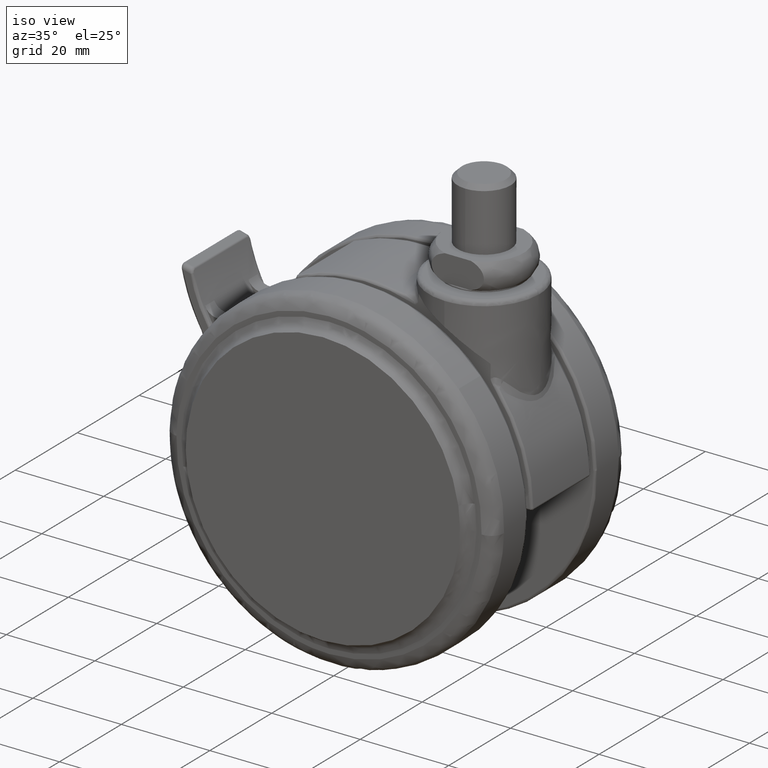
[diagram: clean part render]
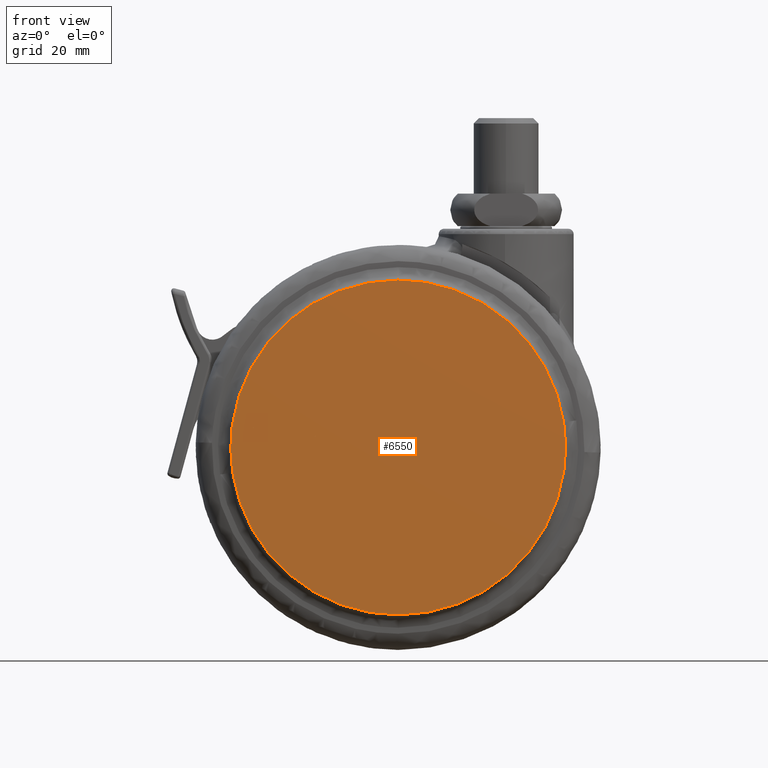
[diagram: tour spotlight — one face highlighted and labeled with its STEP entity id]
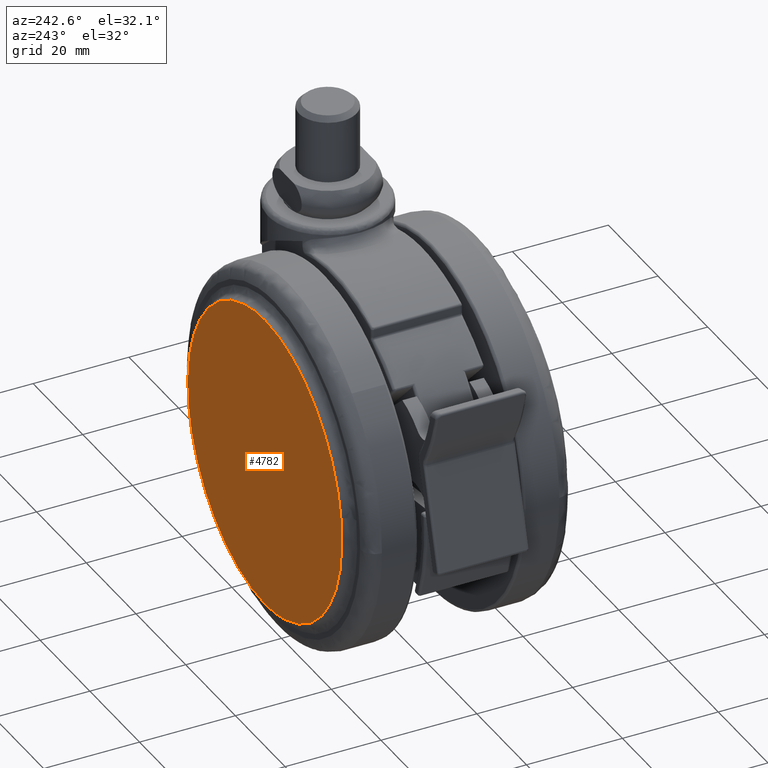
[diagram: tour spotlight — one face highlighted and labeled with its STEP entity id]
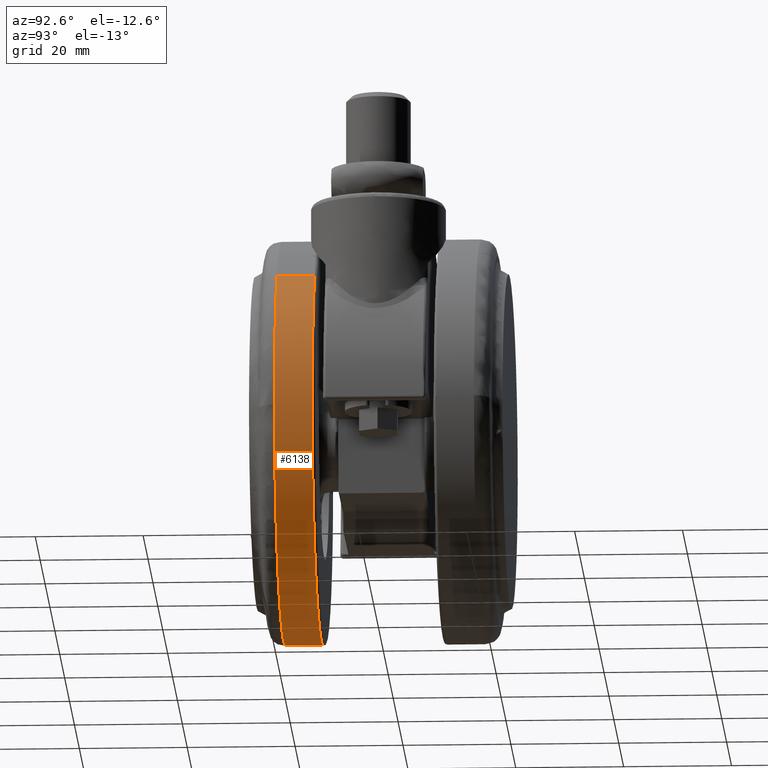
[diagram: tour spotlight — one face highlighted and labeled with its STEP entity id]
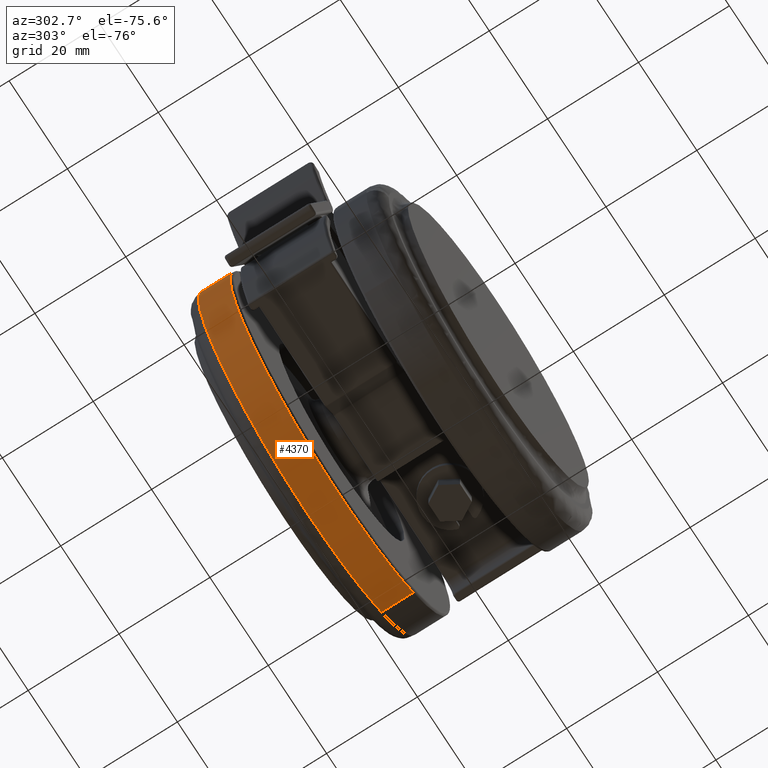
[diagram: tour spotlight — one face highlighted and labeled with its STEP entity id]
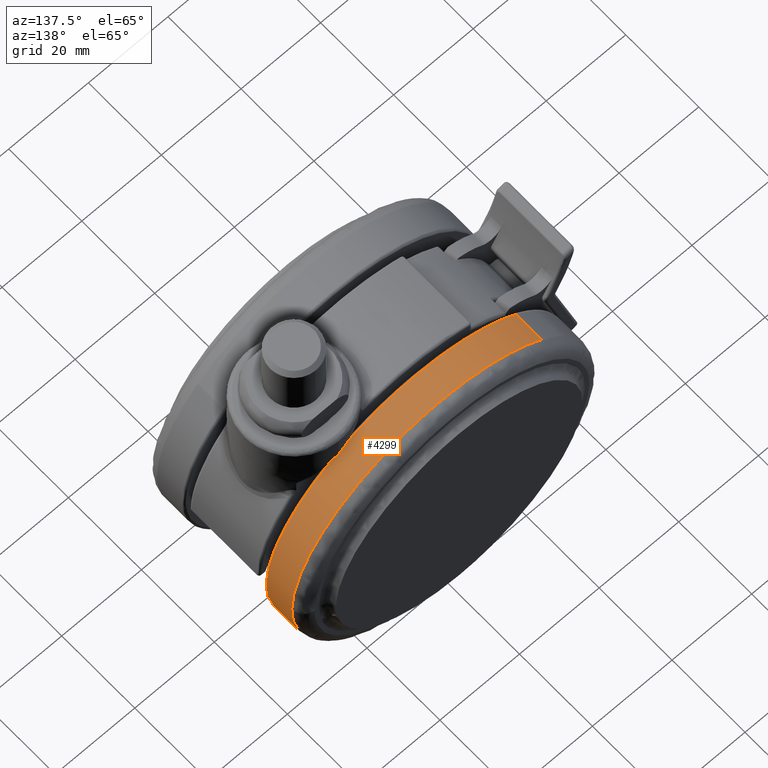
[diagram: tour spotlight — one face highlighted and labeled with its STEP entity id]
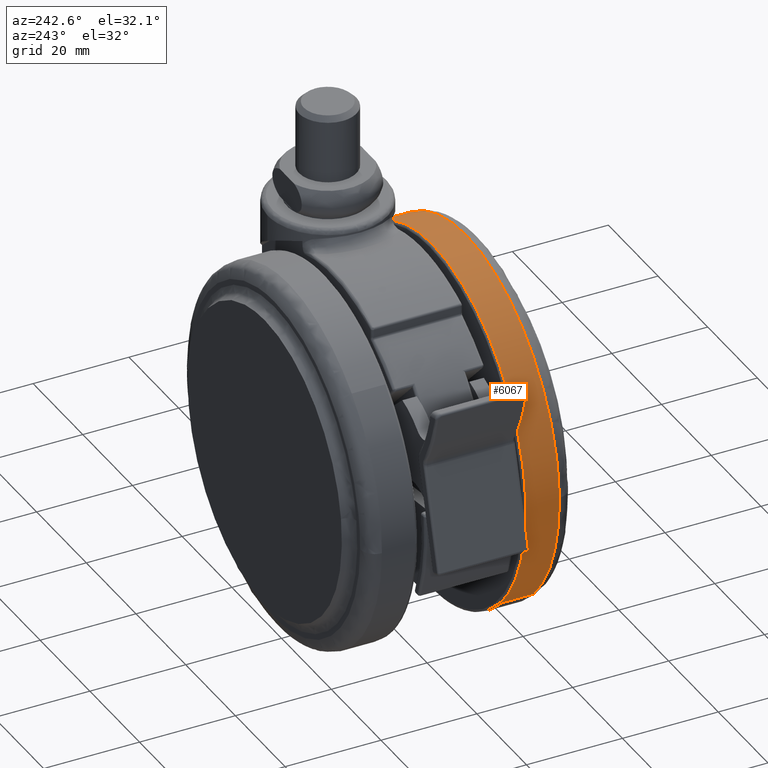
[diagram: tour spotlight — one face highlighted and labeled with its STEP entity id]
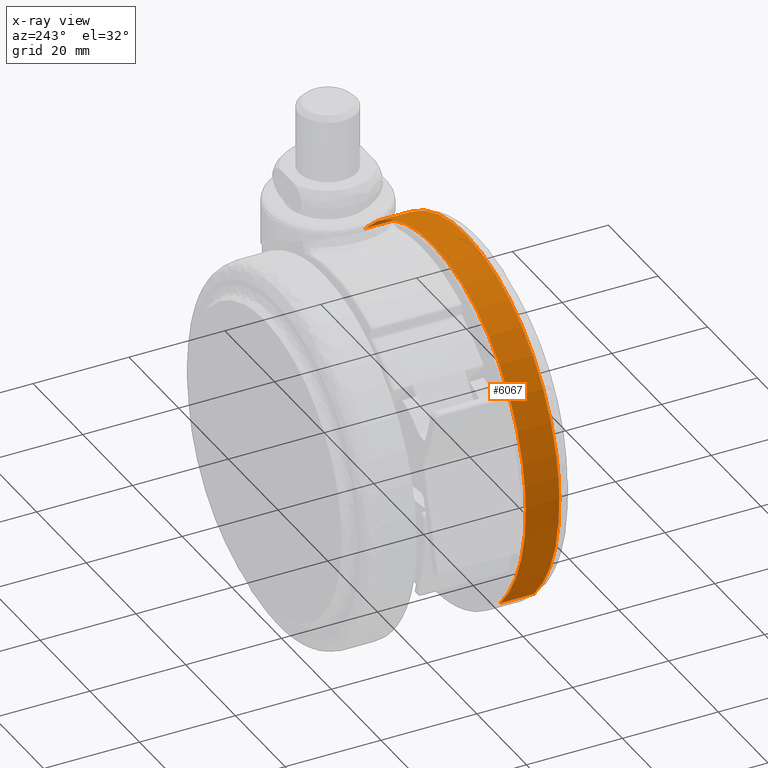
[diagram: x-ray of the same camera — body ghosted, this tour face saturated]
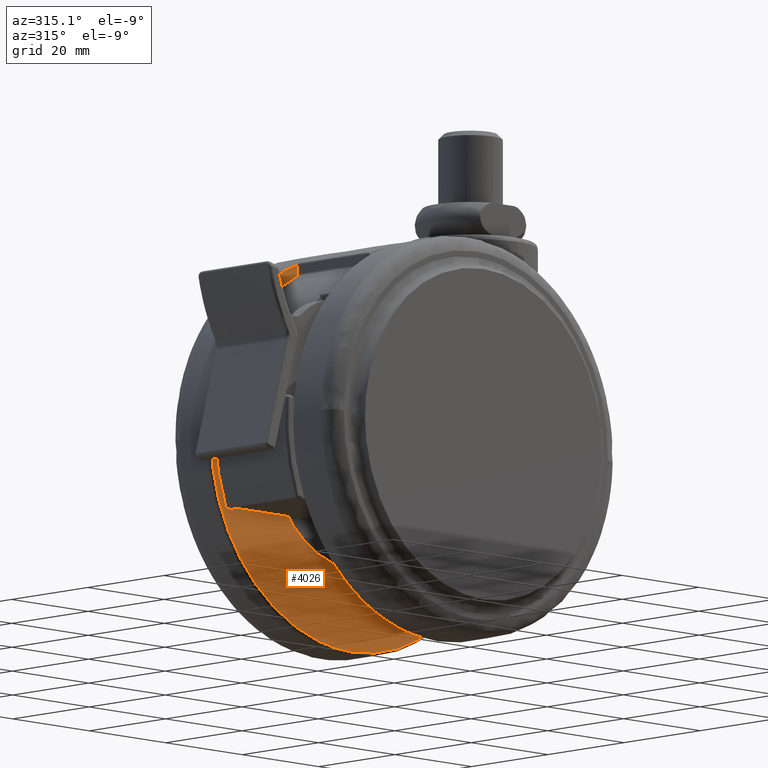
[diagram: tour spotlight — one face highlighted and labeled with its STEP entity id]
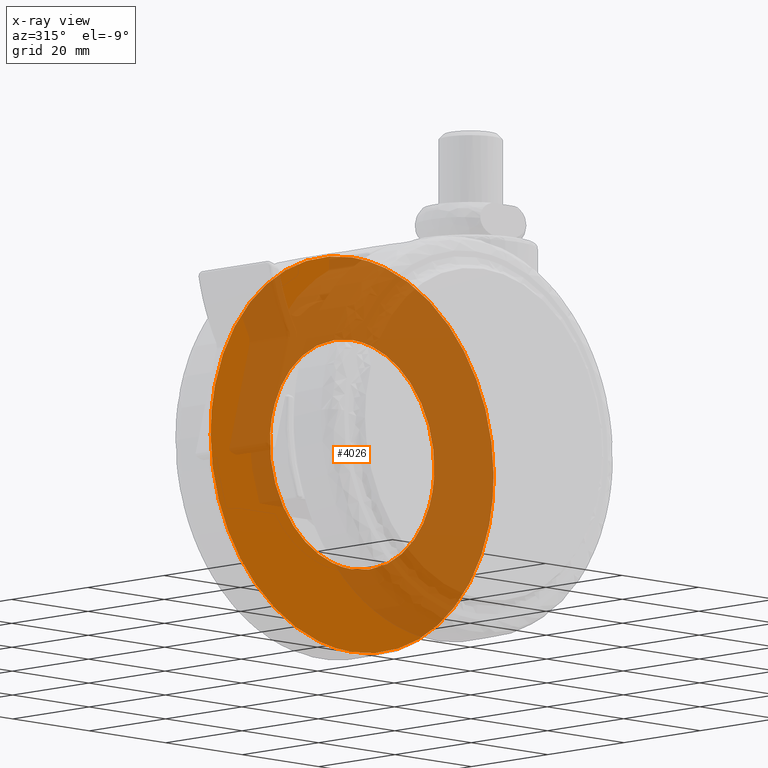
[diagram: x-ray of the same camera — body ghosted, this tour face saturated]
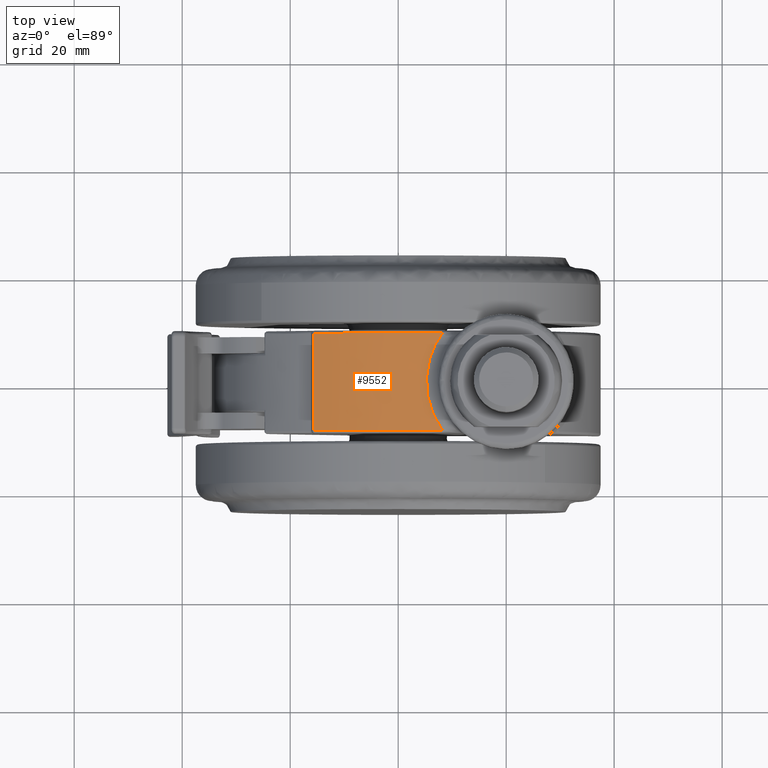
[diagram: tour spotlight — one face highlighted and labeled with its STEP entity id]
A machine part: a face-by-face anatomy tour. The part has 260 B-rep faces; the first image is the clean iso view, then the 8 largest visible faces are spotlighted one at a time (largest first), each with its STEP entity span.

Face 1 — front view, entity #6550. In plain terms, the highlighted face is a freeform B-spline surface patch.
Definition (entity closure, byte-faithful):
#6410=CARTESIAN_POINT('',(10.648204086947260,-23.499999999140972,-35.843006737229253));
#6411=VERTEX_POINT('',#6410);
#6425=CARTESIAN_POINT('',(-20.0,-23.500000000000021,-71.500000000000185));
#6426=VERTEX_POINT('',#6425);
#6427=CARTESIAN_POINT('',(-20.0,-23.500000000000021,-71.500000000000185));
#6428=CARTESIAN_POINT('',(11.000000000031953,-23.499999999630838,-71.499999999995254));
#6429=CARTESIAN_POINT('',(11.000000000069130,-23.499999999201311,-40.499999999989498));
#6430=CARTESIAN_POINT('',(11.000000000071932,-23.499999999168864,-38.158215786095255));
#6431=CARTESIAN_POINT('',(10.648204086947262,-23.499999999140975,-35.843006737229246));
#6439=(BOUNDED_CURVE()B_SPLINE_CURVE(2,(#6427,#6428,#6429,#6430,#6431),.UNSPECIFIED.,.F.,.U.)B_SPLINE_CURVE_WITH_KNOTS((3,2,3),(0.0,0.250000000000000,0.275897584623553),.UNSPECIFIED.)CURVE()GEOMETRIC_REPRESENTATION_ITEM()RATIONAL_B_SPLINE_CURVE((1.0,0.707106781186548,1.0,0.969659092320456,0.945604234434402))REPRESENTATION_ITEM(''));
#6440=EDGE_CURVE('',#6426,#6411,#6439,.T.);
#6442=CARTESIAN_POINT('',(-50.648204086947260,-23.499999999140972,-45.156993262770747));
#6443=VERTEX_POINT('',#6442);
#6444=CARTESIAN_POINT('',(-50.648204086947260,-23.499999999140968,-45.156993262770762));
#6445=CARTESIAN_POINT('',(-46.645385372037936,-23.499999999570488,-71.500000000005727));
#6446=CARTESIAN_POINT('',(-20.0,-23.500000000000021,-71.500000000000185));
#6454=(BOUNDED_CURVE()B_SPLINE_CURVE(2,(#6444,#6445,#6446),.UNSPECIFIED.,.F.,.U.)B_SPLINE_CURVE_WITH_KNOTS((3,3),(0.775897584623553,1.0),.UNSPECIFIED.)CURVE()GEOMETRIC_REPRESENTATION_ITEM()RATIONAL_B_SPLINE_CURVE((0.945604234434402,0.737447688866092,1.0))REPRESENTATION_ITEM(''));
#6455=EDGE_CURVE('',#6443,#6426,#6454,.T.);
#6504=CARTESIAN_POINT('',(-20.0,-23.500000000000000,-9.500000000000002));
#6505=VERTEX_POINT('',#6504);
#6506=CARTESIAN_POINT('',(-20.0,-23.500000000000000,-9.500000000000002));
#6507=CARTESIAN_POINT('',(-51.000000000031974,-23.499999999630823,-9.500000000004851));
#6508=CARTESIAN_POINT('',(-51.000000000069129,-23.499999999201300,-40.500000000010488));
#6509=CARTESIAN_POINT('',(-51.000000000071942,-23.499999999168857,-42.841784213904745));
#6510=CARTESIAN_POINT('',(-50.648204086947260,-23.499999999140968,-45.156993262770762));
#6518=(BOUNDED_CURVE()B_SPLINE_CURVE(2,(#6506,#6507,#6508,#6509,#6510),.UNSPECIFIED.,.F.,.U.)B_SPLINE_CURVE_WITH_KNOTS((3,2,3),(0.500000000000000,0.750000000000000,0.775897584623553),.UNSPECIFIED.)CURVE()GEOMETRIC_REPRESENTATION_ITEM()RATIONAL_B_SPLINE_CURVE((1.0,0.707106781186548,1.0,0.969659092320456,0.945604234434402))REPRESENTATION_ITEM(''));
#6519=EDGE_CURVE('',#6505,#6443,#6518,.T.);
#6521=CARTESIAN_POINT('',(10.648204086947262,-23.499999999140975,-35.843006737229246));
#6522=CARTESIAN_POINT('',(6.645385372037931,-23.499999999570491,-9.499999999994349));
#6523=CARTESIAN_POINT('',(-20.0,-23.500000000000000,-9.500000000000002));
#6531=(BOUNDED_CURVE()B_SPLINE_CURVE(2,(#6521,#6522,#6523),.UNSPECIFIED.,.F.,.U.)B_SPLINE_CURVE_WITH_KNOTS((3,3),(0.275897584623553,0.500000000000000),.UNSPECIFIED.)CURVE()GEOMETRIC_REPRESENTATION_ITEM()RATIONAL_B_SPLINE_CURVE((0.945604234434402,0.737447688866092,1.0))REPRESENTATION_ITEM(''));
#6532=EDGE_CURVE('',#6411,#6505,#6531,.T.);
#6539=CARTESIAN_POINT('',(-54.089121003145273,-23.500000000000000,-6.403100120168022));
#6540=CARTESIAN_POINT('',(-54.089121003145273,-23.500000000000000,-74.596901542801746));
#6541=CARTESIAN_POINT('',(14.089122665735459,-23.500000000000000,-6.403100120168022));
#6542=CARTESIAN_POINT('',(14.089122665735459,-23.500000000000000,-74.596901542801746));
#6543=B_SPLINE_SURFACE_WITH_KNOTS('',1,1,((#6539,#6541),(#6540,#6542)),.UNSPECIFIED.,.F.,.F.,.U.,(2,2),(2,2),(0.0,68.193801422633726),(0.0,68.178243668880725),.UNSPECIFIED.);
#6544=ORIENTED_EDGE('',*,*,#6440,.T.);
#6545=ORIENTED_EDGE('',*,*,#6532,.T.);
#6546=ORIENTED_EDGE('',*,*,#6519,.T.);
#6547=ORIENTED_EDGE('',*,*,#6455,.T.);
#6548=EDGE_LOOP('',(#6544,#6545,#6546,#6547));
#6549=FACE_OUTER_BOUND('',#6548,.T.);
#6550=ADVANCED_FACE('',(#6549),#6543,.T.);

Face 2 — auxiliary view, entity #4782. In plain terms, the highlighted face is a freeform B-spline surface patch.
Definition (entity closure, byte-faithful):
#4642=CARTESIAN_POINT('',(-50.648204086947374,23.499999999138350,-35.843006737228443));
#4643=VERTEX_POINT('',#4642);
#4657=CARTESIAN_POINT('',(-20.0,23.500000000000021,-71.500000000000185));
#4658=VERTEX_POINT('',#4657);
#4659=CARTESIAN_POINT('',(-50.648204086947381,23.499999999138357,-35.843006737228428));
#4660=CARTESIAN_POINT('',(-51.000000000072170,23.499999999166324,-38.158215786094836));
#4661=CARTESIAN_POINT('',(-51.000000000069363,23.499999999198870,-40.499999999989477));
#4662=CARTESIAN_POINT('',(-51.000000000032060,23.499999999629708,-71.499999999995239));
#4663=CARTESIAN_POINT('',(-20.0,23.500000000000021,-71.500000000000185));
#4671=(BOUNDED_CURVE()B_SPLINE_CURVE(2,(#4659,#4660,#4661,#4662,#4663),.UNSPECIFIED.,.F.,.U.)B_SPLINE_CURVE_WITH_KNOTS((3,2,3),(0.724102415376443,0.750000000000000,1.0),.UNSPECIFIED.)CURVE()GEOMETRIC_REPRESENTATION_ITEM()RATIONAL_B_SPLINE_CURVE((0.945604234434395,0.969659092320451,1.0,0.707106781186548,1.0))REPRESENTATION_ITEM(''));
#4672=EDGE_CURVE('',#4643,#4658,#4671,.T.);
#4674=CARTESIAN_POINT('',(10.648204086947370,23.499999999138360,-45.156993262771557));
#4675=VERTEX_POINT('',#4674);
#4676=CARTESIAN_POINT('',(-20.0,23.500000000000021,-71.500000000000185));
#4677=CARTESIAN_POINT('',(6.645385372037358,23.499999999569194,-71.500000000005755));
#4678=CARTESIAN_POINT('',(10.648204086947372,23.499999999138357,-45.156993262771564));
#4686=(BOUNDED_CURVE()B_SPLINE_CURVE(2,(#4676,#4677,#4678),.UNSPECIFIED.,.F.,.U.)B_SPLINE_CURVE_WITH_KNOTS((3,3),(0.0,0.224102415376443),.UNSPECIFIED.)CURVE()GEOMETRIC_REPRESENTATION_ITEM()RATIONAL_B_SPLINE_CURVE((1.0,0.737447688866097,0.945604234434395))REPRESENTATION_ITEM(''));
#4687=EDGE_CURVE('',#4658,#4675,#4686,.T.);
#4736=CARTESIAN_POINT('',(-20.0,23.500000000000000,-9.500000000000002));
#4737=VERTEX_POINT('',#4736);
#4738=CARTESIAN_POINT('',(10.648204086947372,23.499999999138357,-45.156993262771564));
#4739=CARTESIAN_POINT('',(11.000000000072161,23.499999999166334,-42.841784213905179));
#4740=CARTESIAN_POINT('',(11.000000000069340,23.499999999198870,-40.500000000010537));
#4741=CARTESIAN_POINT('',(11.000000000032053,23.499999999629690,-9.500000000004876));
#4742=CARTESIAN_POINT('',(-20.0,23.500000000000000,-9.500000000000002));
#4750=(BOUNDED_CURVE()B_SPLINE_CURVE(2,(#4738,#4739,#4740,#4741,#4742),.UNSPECIFIED.,.F.,.U.)B_SPLINE_CURVE_WITH_KNOTS((3,2,3),(0.224102415376443,0.250000000000000,0.500000000000000),.UNSPECIFIED.)CURVE()GEOMETRIC_REPRESENTATION_ITEM()RATIONAL_B_SPLINE_CURVE((0.945604234434395,0.969659092320451,1.0,0.707106781186548,1.0))REPRESENTATION_ITEM(''));
#4751=EDGE_CURVE('',#4675,#4737,#4750,.T.);
#4753=CARTESIAN_POINT('',(-20.0,23.500000000000000,-9.500000000000002));
#4754=CARTESIAN_POINT('',(-46.645385372037346,23.499999999569180,-9.499999999994335));
#4755=CARTESIAN_POINT('',(-50.648204086947381,23.499999999138357,-35.843006737228428));
#4763=(BOUNDED_CURVE()B_SPLINE_CURVE(2,(#4753,#4754,#4755),.UNSPECIFIED.,.F.,.U.)B_SPLINE_CURVE_WITH_KNOTS((3,3),(0.500000000000000,0.724102415376443),.UNSPECIFIED.)CURVE()GEOMETRIC_REPRESENTATION_ITEM()RATIONAL_B_SPLINE_CURVE((1.0,0.737447688866097,0.945604234434395))REPRESENTATION_ITEM(''));
#4764=EDGE_CURVE('',#4737,#4643,#4763,.T.);
#4771=CARTESIAN_POINT('',(14.089121109995141,23.500000000000000,-6.403100120168022));
#4772=CARTESIAN_POINT('',(14.089121109995141,23.500000000000000,-74.596901542801746));
#4773=CARTESIAN_POINT('',(-54.089121664191858,23.500000000000000,-6.403100120168022));
#4774=CARTESIAN_POINT('',(-54.089121664191858,23.500000000000000,-74.596901542801746));
#4775=B_SPLINE_SURFACE_WITH_KNOTS('',1,1,((#4771,#4773),(#4772,#4774)),.UNSPECIFIED.,.F.,.F.,.U.,(2,2),(2,2),(0.0,68.193801422633726),(0.0,68.178242774186998),.UNSPECIFIED.);
#4776=ORIENTED_EDGE('',*,*,#4672,.F.);
#4777=ORIENTED_EDGE('',*,*,#4764,.F.);
#4778=ORIENTED_EDGE('',*,*,#4751,.F.);
#4779=ORIENTED_EDGE('',*,*,#4687,.F.);
#4780=EDGE_LOOP('',(#4776,#4777,#4778,#4779));
#4781=FACE_OUTER_BOUND('',#4780,.T.);
#4782=ADVANCED_FACE('',(#4781),#4775,.T.);

Face 3 — auxiliary view, entity #6138. In plain terms, the highlighted face is a freeform B-spline surface patch.
Definition (entity closure, byte-faithful):
#5856=CARTESIAN_POINT('',(7.201539494220557,-11.499999998926210,-14.686704024004261));
#5857=VERTEX_POINT('',#5856);
#5871=CARTESIAN_POINT('',(17.497039157642948,-11.499999997910869,-40.971226495637552));
#5872=VERTEX_POINT('',#5871);
#5873=CARTESIAN_POINT('',(17.497039157642945,-11.499999997910868,-40.971226495637552));
#5874=CARTESIAN_POINT('',(17.499999999999993,-11.499999997917355,-40.735622549701780));
#5875=CARTESIAN_POINT('',(17.499999999999989,-11.499999997923910,-40.500000000000000));
#5876=CARTESIAN_POINT('',(17.499999999999993,-11.499999998340654,-25.539017515397671));
#5877=CARTESIAN_POINT('',(7.201539494220572,-11.499999998926230,-14.686704024004259));
#5885=(BOUNDED_CURVE()B_SPLINE_CURVE(2,(#5873,#5874,#5875,#5876,#5877),.UNSPECIFIED.,.F.,.U.)B_SPLINE_CURVE_WITH_KNOTS((3,2,3),(0.247784295921673,0.250000000000000,0.371049523260813),.UNSPECIFIED.)CURVE()GEOMETRIC_REPRESENTATION_ITEM()RATIONAL_B_SPLINE_CURVE((0.994854295643885,0.997404141202243,1.0,0.858181661985227,0.853699661621086))REPRESENTATION_ITEM(''));
#5886=EDGE_CURVE('',#5872,#5857,#5885,.T.);
#5935=CARTESIAN_POINT('',(-20.0,-11.500000000000000,-78.0));
#5936=VERTEX_POINT('',#5935);
#5937=CARTESIAN_POINT('',(-20.0,-11.500000000000000,-78.0));
#5938=CARTESIAN_POINT('',(17.031697371512600,-11.499999998955436,-78.000000000000014));
#5939=CARTESIAN_POINT('',(17.497039157642945,-11.499999997910868,-40.971226495637552));
#5947=(BOUNDED_CURVE()B_SPLINE_CURVE(2,(#5937,#5938,#5939),.UNSPECIFIED.,.F.,.U.)B_SPLINE_CURVE_WITH_KNOTS((3,3),(0.0,0.247784295921673),.UNSPECIFIED.)CURVE()GEOMETRIC_REPRESENTATION_ITEM()RATIONAL_B_SPLINE_CURVE((1.0,0.709702639984305,0.994854295643885))REPRESENTATION_ITEM(''));
#5948=EDGE_CURVE('',#5936,#5872,#5947,.T.);
#5950=CARTESIAN_POINT('',(-47.201539494220562,-11.499999998926210,-66.313295975995743));
#5951=VERTEX_POINT('',#5950);
#5952=CARTESIAN_POINT('',(-47.201539494220576,-11.499999998926230,-66.313295975995757));
#5953=CARTESIAN_POINT('',(-36.111271973899612,-11.499999999556826,-78.0));
#5954=CARTESIAN_POINT('',(-20.0,-11.500000000000000,-78.0));
#5962=(BOUNDED_CURVE()B_SPLINE_CURVE(2,(#5952,#5953,#5954),.UNSPECIFIED.,.F.,.U.)B_SPLINE_CURVE_WITH_KNOTS((3,3),(0.871049523260813,1.0),.UNSPECIFIED.)CURVE()GEOMETRIC_REPRESENTATION_ITEM()RATIONAL_B_SPLINE_CURVE((0.853699661621086,0.848925119201321,1.0))REPRESENTATION_ITEM(''));
#5963=EDGE_CURVE('',#5951,#5936,#5962,.T.);
#6006=CARTESIAN_POINT('',(-47.201539487217197,-18.500000000235769,-66.313295983375752));
#6007=VERTEX_POINT('',#6006);
#6008=CARTESIAN_POINT('',(-47.201539494220562,-11.499999998926210,-66.313295975995743));
#6009=CARTESIAN_POINT('',(-47.201539487217197,-18.500000000235769,-66.313295983375752));
#6010=QUASI_UNIFORM_CURVE('',1,(#6008,#6009),.UNSPECIFIED.,.F.,.U.);
#6011=EDGE_CURVE('',#5951,#6007,#6010,.T.);
#6045=CARTESIAN_POINT('',(7.201539487217199,-18.500000000235769,-14.686704016624271));
#6046=VERTEX_POINT('',#6045);
#6060=CARTESIAN_POINT('',(7.201539494220557,-11.499999998926210,-14.686704024004261));
#6061=CARTESIAN_POINT('',(7.201539487217199,-18.500000000235769,-14.686704016624271));
#6062=QUASI_UNIFORM_CURVE('',1,(#6060,#6061),.UNSPECIFIED.,.F.,.U.);
#6063=EDGE_CURVE('',#5857,#6046,#6062,.T.);
#6068=CARTESIAN_POINT('',(-47.201538912960771,-11.324999997847071,-66.313296588515769));
#6069=CARTESIAN_POINT('',(-21.388242324445006,-11.324999997847073,-93.514835501476540));
#6070=CARTESIAN_POINT('',(5.813296588515765,-11.324999997847071,-67.701538912960771));
#6071=CARTESIAN_POINT('',(33.014835501476547,-11.324999997847073,-41.888242324445017));
#6072=CARTESIAN_POINT('',(7.201538912960775,-11.324999997847071,-14.686703411484240));
#6073=CARTESIAN_POINT('',(-47.201538912960771,-18.679375000528129,-66.313296588515769));
#6074=CARTESIAN_POINT('',(-21.388242324445006,-18.679375000528129,-93.514835501476540));
#6075=CARTESIAN_POINT('',(5.813296588515765,-18.679375000528129,-67.701538912960771));
#6076=CARTESIAN_POINT('',(33.014835501476547,-18.679375000528129,-41.888242324445017));
#6077=CARTESIAN_POINT('',(7.201538912960775,-18.679375000528129,-14.686703411484240));
#6085=(BOUNDED_SURFACE()B_SPLINE_SURFACE(2,1,((#6068,#6073),(#6069,#6074),(#6070,#6075),(#6071,#6076),(#6072,#6077)),.UNSPECIFIED.,.F.,.F.,.U.)B_SPLINE_SURFACE_WITH_KNOTS((3,2,3),(2,2),(0.0,62.132034355964230,124.264068711928500),(0.0,7.354375002681055),.UNSPECIFIED.)GEOMETRIC_REPRESENTATION_ITEM()RATIONAL_B_SPLINE_SURFACE(((1.0,1.0),(0.707106781186548,0.707106781186548),(1.0,1.0),(0.707106781186548,0.707106781186548),(1.0,1.0)))REPRESENTATION_ITEM('')SURFACE());
#6086=ORIENTED_EDGE('',*,*,#5886,.T.);
#6087=ORIENTED_EDGE('',*,*,#6063,.T.);
#6088=CARTESIAN_POINT('',(17.488157098123072,-18.500000000462730,-41.442378579151907));
#6089=VERTEX_POINT('',#6088);
#6090=CARTESIAN_POINT('',(17.488157098123075,-18.500000000462730,-41.442378579151914));
#6091=CARTESIAN_POINT('',(17.499999999999993,-18.500000000459902,-40.971263704640130));
#6092=CARTESIAN_POINT('',(17.500000000000000,-18.500000000456989,-40.500000000000007));
#6093=CARTESIAN_POINT('',(17.499999999999993,-18.500000000364686,-25.539017509500944));
#6094=CARTESIAN_POINT('',(7.201539487217209,-18.500000000235762,-14.686704016624251));
#6102=(BOUNDED_CURVE()B_SPLINE_CURVE(2,(#6090,#6091,#6092,#6093,#6094),.UNSPECIFIED.,.F.,.U.)B_SPLINE_CURVE_WITH_KNOTS((3,2,3),(0.245579891769683,0.250000000000000,0.371049523301757),.UNSPECIFIED.)CURVE()GEOMETRIC_REPRESENTATION_ITEM()RATIONAL_B_SPLINE_CURVE((0.989826157681294,0.994821521091674,1.0,0.858181661937258,0.853699661618054))REPRESENTATION_ITEM(''));
#6103=EDGE_CURVE('',#6089,#6046,#6102,.T.);
#6104=ORIENTED_EDGE('',*,*,#6103,.F.);
#6105=CARTESIAN_POINT('',(-20.0,-18.500000000000000,-78.000000000000014));
#6106=VERTEX_POINT('',#6105);
#6107=CARTESIAN_POINT('',(-20.0,-18.500000000000000,-78.000000000000014));
#6108=CARTESIAN_POINT('',(16.569170356748231,-18.500000000231370,-78.000000000000028));
#6109=CARTESIAN_POINT('',(17.488157098123075,-18.500000000462730,-41.442378579151914));
#6117=(BOUNDED_CURVE()B_SPLINE_CURVE(2,(#6107,#6108,#6109),.UNSPECIFIED.,.F.,.U.)B_SPLINE_CURVE_WITH_KNOTS((3,3),(0.0,0.245579891769683),.UNSPECIFIED.)CURVE()GEOMETRIC_REPRESENTATION_ITEM()RATIONAL_B_SPLINE_CURVE((1.0,0.712285260094873,0.989826157681294))REPRESENTATION_ITEM(''));
#6118=EDGE_CURVE('',#6106,#6089,#6117,.T.);
#6119=ORIENTED_EDGE('',*,*,#6118,.F.);
#6120=CARTESIAN_POINT('',(-47.201539487217218,-18.500000000235772,-66.313295983375752));
#6121=CARTESIAN_POINT('',(-36.111271967873606,-18.500000000096939,-78.0));
#6122=CARTESIAN_POINT('',(-20.0,-18.500000000000000,-78.000000000000014));
#6130=(BOUNDED_CURVE()B_SPLINE_CURVE(2,(#6120,#6121,#6122),.UNSPECIFIED.,.F.,.U.)B_SPLINE_CURVE_WITH_KNOTS((3,3),(0.871049523301757,1.0),.UNSPECIFIED.)CURVE()GEOMETRIC_REPRESENTATION_ITEM()RATIONAL_B_SPLINE_CURVE((0.853699661618054,0.848925119249290,1.0))REPRESENTATION_ITEM(''));
#6131=EDGE_CURVE('',#6007,#6106,#6130,.T.);
#6132=ORIENTED_EDGE('',*,*,#6131,.F.);
#6133=ORIENTED_EDGE('',*,*,#6011,.F.);
#6134=ORIENTED_EDGE('',*,*,#5963,.T.);
#6135=ORIENTED_EDGE('',*,*,#5948,.T.);
#6136=EDGE_LOOP('',(#6086,#6087,#6104,#6119,#6132,#6133,#6134,#6135));
#6137=FACE_OUTER_BOUND('',#6136,.T.);
#6138=ADVANCED_FACE('',(#6137),#6085,.T.);

Face 4 — auxiliary view, entity #4370. In plain terms, the highlighted face is a freeform B-spline surface patch.
Definition (entity closure, byte-faithful):
#4088=CARTESIAN_POINT('',(-45.334630958533047,11.499999999030729,-12.852098195433880));
#4089=VERTEX_POINT('',#4088);
#4103=CARTESIAN_POINT('',(-57.497039157642988,11.499999997915200,-40.971226495634191));
#4104=VERTEX_POINT('',#4103);
#4105=CARTESIAN_POINT('',(-45.334630958533111,11.499999999030695,-12.852098195433808));
#4106=CARTESIAN_POINT('',(-57.499999999999993,11.499999998386881,-23.999603612608912));
#4107=CARTESIAN_POINT('',(-57.499999999999993,11.499999997928210,-40.500000000000007));
#4108=CARTESIAN_POINT('',(-57.499999999999986,11.499999997921664,-40.735622549700111));
#4109=CARTESIAN_POINT('',(-57.497039157642988,11.499999997915202,-40.971226495634191));
#4117=(BOUNDED_CURVE()B_SPLINE_CURVE(2,(#4105,#4106,#4107,#4108,#4109),.UNSPECIFIED.,.F.,.U.)B_SPLINE_CURVE_WITH_KNOTS((3,2,3),(0.618415199108181,0.750000000000000,0.752215704078312),.UNSPECIFIED.)CURVE()GEOMETRIC_REPRESENTATION_ITEM()RATIONAL_B_SPLINE_CURVE((0.853959782069310,0.845838816479471,1.0,0.997404141202261,0.994854295643921))REPRESENTATION_ITEM(''));
#4118=EDGE_CURVE('',#4089,#4104,#4117,.T.);
#4167=CARTESIAN_POINT('',(-20.0,11.500000000000000,-78.0));
#4168=VERTEX_POINT('',#4167);
#4169=CARTESIAN_POINT('',(-57.497039157642988,11.499999997915202,-40.971226495634191));
#4170=CARTESIAN_POINT('',(-57.031697371515932,11.499999998957598,-78.0));
#4171=CARTESIAN_POINT('',(-20.0,11.500000000000000,-78.0));
#4179=(BOUNDED_CURVE()B_SPLINE_CURVE(2,(#4169,#4170,#4171),.UNSPECIFIED.,.F.,.U.)B_SPLINE_CURVE_WITH_KNOTS((3,3),(0.752215704078312,1.0),.UNSPECIFIED.)CURVE()GEOMETRIC_REPRESENTATION_ITEM()RATIONAL_B_SPLINE_CURVE((0.994854295643921,0.709702639984287,1.0))REPRESENTATION_ITEM(''));
#4180=EDGE_CURVE('',#4104,#4168,#4179,.T.);
#4182=CARTESIAN_POINT('',(5.334630958533095,11.499999999030729,-68.147901804566118));
#4183=VERTEX_POINT('',#4182);
#4184=CARTESIAN_POINT('',(-20.0,11.500000000000000,-78.0));
#4185=CARTESIAN_POINT('',(-5.417048981945808,11.499999999599694,-78.0));
#4186=CARTESIAN_POINT('',(5.334630958533142,11.499999999030694,-68.147901804566160));
#4194=(BOUNDED_CURVE()B_SPLINE_CURVE(2,(#4184,#4185,#4186),.UNSPECIFIED.,.F.,.U.)B_SPLINE_CURVE_WITH_KNOTS((3,3),(0.0,0.118415199108181),.UNSPECIFIED.)CURVE()GEOMETRIC_REPRESENTATION_ITEM()RATIONAL_B_SPLINE_CURVE((1.0,0.861267964707076,0.853959782069310))REPRESENTATION_ITEM(''));
#4195=EDGE_CURVE('',#4168,#4183,#4194,.T.);
#4238=CARTESIAN_POINT('',(5.334630980545483,18.500000000211710,-68.147901784395486));
#4239=VERTEX_POINT('',#4238);
#4240=CARTESIAN_POINT('',(5.334630958533095,11.499999999030729,-68.147901804566118));
#4241=CARTESIAN_POINT('',(5.334630980545483,18.500000000211710,-68.147901784395486));
#4242=QUASI_UNIFORM_CURVE('',1,(#4240,#4241),.UNSPECIFIED.,.F.,.U.);
#4243=EDGE_CURVE('',#4183,#4239,#4242,.T.);
#4277=CARTESIAN_POINT('',(-45.334630980545427,18.500000000211710,-12.852098215604499));
#4278=VERTEX_POINT('',#4277);
#4292=CARTESIAN_POINT('',(-45.334630958533047,11.499999999030729,-12.852098195433880));
#4293=CARTESIAN_POINT('',(-45.334630980545427,18.500000000211710,-12.852098215604499));
#4294=QUASI_UNIFORM_CURVE('',1,(#4292,#4293),.UNSPECIFIED.,.F.,.U.);
#4295=EDGE_CURVE('',#4089,#4278,#4294,.T.);
#4300=CARTESIAN_POINT('',(5.334632785587271,11.324999997851590,-68.147900130379639));
#4301=CARTESIAN_POINT('',(-22.313267344792362,11.324999997851638,-93.482532915966885));
#4302=CARTESIAN_POINT('',(-47.647900130379618,11.324999997851680,-65.834632785587246));
#4303=CARTESIAN_POINT('',(-72.982532915966871,11.324999997851714,-38.186732655207628));
#4304=CARTESIAN_POINT('',(-45.334632785587232,11.324999997851670,-12.852099869620361));
#4305=CARTESIAN_POINT('',(5.334632785587282,18.679375000520459,-68.147900130379639));
#4306=CARTESIAN_POINT('',(-22.313267344792362,18.679375000520491,-93.482532915966885));
#4307=CARTESIAN_POINT('',(-47.647900130379611,18.679375000520540,-65.834632785587246));
#4308=CARTESIAN_POINT('',(-72.982532915966871,18.679375000520576,-38.186732655207628));
#4309=CARTESIAN_POINT('',(-45.334632785587232,18.679375000520530,-12.852099869620361));
#4317=(BOUNDED_SURFACE()B_SPLINE_SURFACE(2,1,((#4300,#4305),(#4301,#4306),(#4302,#4307),(#4303,#4308),(#4304,#4309)),.UNSPECIFIED.,.F.,.F.,.U.)B_SPLINE_SURFACE_WITH_KNOTS((3,2,3),(2,2),(0.0,62.132034355964237,124.264068711928500),(0.0,7.354375002668862),.UNSPECIFIED.)GEOMETRIC_REPRESENTATION_ITEM()RATIONAL_B_SPLINE_SURFACE(((1.0,1.0),(0.707106781186548,0.707106781186548),(1.0,1.0),(0.707106781186548,0.707106781186548),(1.0,1.0)))REPRESENTATION_ITEM('')SURFACE());
#4318=ORIENTED_EDGE('',*,*,#4118,.F.);
#4319=ORIENTED_EDGE('',*,*,#4295,.T.);
#4320=CARTESIAN_POINT('',(-57.497039157642988,18.500000000455351,-40.971226495634191));
#4321=VERTEX_POINT('',#4320);
#4322=CARTESIAN_POINT('',(-45.334630980545512,18.500000000211713,-12.852098215604435));
#4323=CARTESIAN_POINT('',(-57.499999999999986,18.500000000352326,-23.999603630427302));
#4324=CARTESIAN_POINT('',(-57.499999999999993,18.500000000452498,-40.500000000000007));
#4325=CARTESIAN_POINT('',(-57.499999999999986,18.500000000453930,-40.735622549700111));
#4326=CARTESIAN_POINT('',(-57.497039157642988,18.500000000455344,-40.971226495634191));
#4334=(BOUNDED_CURVE()B_SPLINE_CURVE(2,(#4322,#4323,#4324,#4325,#4326),.UNSPECIFIED.,.F.,.U.)B_SPLINE_CURVE_WITH_KNOTS((3,2,3),(0.618415199228371,0.750000000000000,0.752215704078312),.UNSPECIFIED.)CURVE()GEOMETRIC_REPRESENTATION_ITEM()RATIONAL_B_SPLINE_CURVE((0.853959782054475,0.845838816620283,1.0,0.997404141202261,0.994854295643921))REPRESENTATION_ITEM(''));
#4335=EDGE_CURVE('',#4278,#4321,#4334,.T.);
#4336=ORIENTED_EDGE('',*,*,#4335,.T.);
#4337=CARTESIAN_POINT('',(-20.0,18.500000000000000,-78.000000000000014));
#4338=VERTEX_POINT('',#4337);
#4339=CARTESIAN_POINT('',(-57.497039157642988,18.500000000455344,-40.971226495634191));
#4340=CARTESIAN_POINT('',(-57.031697371515932,18.500000000227672,-78.000000000000014));
#4341=CARTESIAN_POINT('',(-20.0,18.500000000000000,-78.000000000000014));
#4349=(BOUNDED_CURVE()B_SPLINE_CURVE(2,(#4339,#4340,#4341),.UNSPECIFIED.,.F.,.U.)B_SPLINE_CURVE_WITH_KNOTS((3,3),(0.752215704078312,1.0),.UNSPECIFIED.)CURVE()GEOMETRIC_REPRESENTATION_ITEM()RATIONAL_B_SPLINE_CURVE((0.994854295643921,0.709702639984287,1.0))REPRESENTATION_ITEM(''));
#4350=EDGE_CURVE('',#4321,#4338,#4349,.T.);
#4351=ORIENTED_EDGE('',*,*,#4350,.T.);
#4352=CARTESIAN_POINT('',(-20.0,18.500000000000000,-78.000000000000014));
#4353=CARTESIAN_POINT('',(-5.417048964760109,18.500000000087432,-78.0));
#4354=CARTESIAN_POINT('',(5.334630980545540,18.500000000211710,-68.147901784395543));
#4362=(BOUNDED_CURVE()B_SPLINE_CURVE(2,(#4352,#4353,#4354),.UNSPECIFIED.,.F.,.U.)B_SPLINE_CURVE_WITH_KNOTS((3,3),(0.0,0.118415199228371),.UNSPECIFIED.)CURVE()GEOMETRIC_REPRESENTATION_ITEM()RATIONAL_B_SPLINE_CURVE((1.0,0.861267964566265,0.853959782054475))REPRESENTATION_ITEM(''));
#4363=EDGE_CURVE('',#4338,#4239,#4362,.T.);
#4364=ORIENTED_EDGE('',*,*,#4363,.T.);
#4365=ORIENTED_EDGE('',*,*,#4243,.F.);
#4366=ORIENTED_EDGE('',*,*,#4195,.F.);
#4367=ORIENTED_EDGE('',*,*,#4180,.F.);
#4368=EDGE_LOOP('',(#4318,#4319,#4336,#4351,#4364,#4365,#4366,#4367));
#4369=FACE_OUTER_BOUND('',#4368,.T.);
#4370=ADVANCED_FACE('',(#4369),#4317,.T.);

Face 5 — auxiliary view, entity #4299. In plain terms, the highlighted face is a freeform B-spline surface patch.
Definition (entity closure, byte-faithful):
#4058=CARTESIAN_POINT('',(17.497039157642991,11.499999997915200,-40.028773504365809));
#4059=VERTEX_POINT('',#4058);
#4073=CARTESIAN_POINT('',(-20.0,11.500000000000000,-3.000000000000003));
#4074=VERTEX_POINT('',#4073);
#4075=CARTESIAN_POINT('',(17.497039157642991,11.499999997915202,-40.028773504365809));
#4076=CARTESIAN_POINT('',(17.031697371515918,11.499999998957598,-3.000000000000000));
#4077=CARTESIAN_POINT('',(-20.0,11.500000000000000,-3.000000000000003));
#4085=(BOUNDED_CURVE()B_SPLINE_CURVE(2,(#4075,#4076,#4077),.UNSPECIFIED.,.F.,.U.)B_SPLINE_CURVE_WITH_KNOTS((3,3),(0.252215704078312,0.500000000000000),.UNSPECIFIED.)CURVE()GEOMETRIC_REPRESENTATION_ITEM()RATIONAL_B_SPLINE_CURVE((0.994854295643921,0.709702639984287,1.0))REPRESENTATION_ITEM(''));
#4086=EDGE_CURVE('',#4059,#4074,#4085,.T.);
#4088=CARTESIAN_POINT('',(-45.334630958533047,11.499999999030729,-12.852098195433880));
#4089=VERTEX_POINT('',#4088);
#4090=CARTESIAN_POINT('',(-20.0,11.500000000000000,-3.000000000000003));
#4091=CARTESIAN_POINT('',(-34.582951018054160,11.499999999599694,-3.000000000000004));
#4092=CARTESIAN_POINT('',(-45.334630958533111,11.499999999030695,-12.852098195433808));
#4100=(BOUNDED_CURVE()B_SPLINE_CURVE(2,(#4090,#4091,#4092),.UNSPECIFIED.,.F.,.U.)B_SPLINE_CURVE_WITH_KNOTS((3,3),(0.500000000000000,0.618415199108181),.UNSPECIFIED.)CURVE()GEOMETRIC_REPRESENTATION_ITEM()RATIONAL_B_SPLINE_CURVE((1.0,0.861267964707076,0.853959782069310))REPRESENTATION_ITEM(''));
#4101=EDGE_CURVE('',#4074,#4089,#4100,.T.);
#4182=CARTESIAN_POINT('',(5.334630958533095,11.499999999030729,-68.147901804566118));
#4183=VERTEX_POINT('',#4182);
#4197=CARTESIAN_POINT('',(5.334630958533152,11.499999999030694,-68.147901804566160));
#4198=CARTESIAN_POINT('',(17.499999999999996,11.499999998386881,-57.000396387391064));
#4199=CARTESIAN_POINT('',(17.499999999999989,11.499999997928210,-40.499999999999993));
#4200=CARTESIAN_POINT('',(17.499999999999996,11.499999997921664,-40.264377450299897));
#4201=CARTESIAN_POINT('',(17.497039157642991,11.499999997915202,-40.028773504365809));
#4209=(BOUNDED_CURVE()B_SPLINE_CURVE(2,(#4197,#4198,#4199,#4200,#4201),.UNSPECIFIED.,.F.,.U.)B_SPLINE_CURVE_WITH_KNOTS((3,2,3),(0.118415199108181,0.250000000000000,0.252215704078312),.UNSPECIFIED.)CURVE()GEOMETRIC_REPRESENTATION_ITEM()RATIONAL_B_SPLINE_CURVE((0.853959782069310,0.845838816479472,1.0,0.997404141202261,0.994854295643921))REPRESENTATION_ITEM(''));
#4210=EDGE_CURVE('',#4183,#4059,#4209,.T.);
#4217=CARTESIAN_POINT('',(-45.334632785587232,11.324999997851670,-12.852099869620361));
#4218=CARTESIAN_POINT('',(-17.686732655207592,11.324999997851629,12.482532915966889));
#4219=CARTESIAN_POINT('',(7.647900130379654,11.324999997851590,-15.165367214412750));
#4220=CARTESIAN_POINT('',(32.982532915966914,11.324999997851551,-42.813267344792379));
#4221=CARTESIAN_POINT('',(5.334632785587271,11.324999997851590,-68.147900130379639));
#4222=CARTESIAN_POINT('',(-45.334632785587232,18.679375000520530,-12.852099869620361));
#4223=CARTESIAN_POINT('',(-17.686732655207592,18.679375000520491,12.482532915966889));
#4224=CARTESIAN_POINT('',(7.647900130379664,18.679375000520452,-15.165367214412750));
#4225=CARTESIAN_POINT('',(32.982532915966914,18.679375000520405,-42.813267344792379));
#4226=CARTESIAN_POINT('',(5.334632785587282,18.679375000520459,-68.147900130379639));
#4234=(BOUNDED_SURFACE()B_SPLINE_SURFACE(2,1,((#4217,#4222),(#4218,#4223),(#4219,#4224),(#4220,#4225),(#4221,#4226)),.UNSPECIFIED.,.F.,.F.,.U.)B_SPLINE_SURFACE_WITH_KNOTS((3,2,3),(2,2),(0.0,62.132034355964237,124.264068711928500),(0.0,7.354375002668862),.UNSPECIFIED.)GEOMETRIC_REPRESENTATION_ITEM()RATIONAL_B_SPLINE_SURFACE(((1.0,1.0),(0.707106781186548,0.707106781186548),(1.0,1.0),(0.707106781186548,0.707106781186548),(1.0,1.0)))REPRESENTATION_ITEM('')SURFACE());
#4235=ORIENTED_EDGE('',*,*,#4101,.F.);
#4236=ORIENTED_EDGE('',*,*,#4086,.F.);
#4237=ORIENTED_EDGE('',*,*,#4210,.F.);
#4238=CARTESIAN_POINT('',(5.334630980545483,18.500000000211710,-68.147901784395486));
#4239=VERTEX_POINT('',#4238);
#4240=CARTESIAN_POINT('',(5.334630958533095,11.499999999030729,-68.147901804566118));
#4241=CARTESIAN_POINT('',(5.334630980545483,18.500000000211710,-68.147901784395486));
#4242=QUASI_UNIFORM_CURVE('',1,(#4240,#4241),.UNSPECIFIED.,.F.,.U.);
#4243=EDGE_CURVE('',#4183,#4239,#4242,.T.);
#4244=ORIENTED_EDGE('',*,*,#4243,.T.);
#4245=CARTESIAN_POINT('',(17.497039157643002,18.500000000455341,-40.028773504365802));
#4246=VERTEX_POINT('',#4245);
#4247=CARTESIAN_POINT('',(5.334630980545540,18.500000000211710,-68.147901784395543));
#4248=CARTESIAN_POINT('',(17.500000000000000,18.500000000352323,-57.000396369572684));
#4249=CARTESIAN_POINT('',(17.500000000000000,18.500000000452509,-40.500000000000000));
#4250=CARTESIAN_POINT('',(17.500000000000004,18.500000000453930,-40.264377450299897));
#4251=CARTESIAN_POINT('',(17.497039157642991,18.500000000455348,-40.028773504365809));
#4259=(BOUNDED_CURVE()B_SPLINE_CURVE(2,(#4247,#4248,#4249,#4250,#4251),.UNSPECIFIED.,.F.,.U.)B_SPLINE_CURVE_WITH_KNOTS((3,2,3),(0.118415199228371,0.250000000000000,0.252215704078312),.UNSPECIFIED.)CURVE()GEOMETRIC_REPRESENTATION_ITEM()RATIONAL_B_SPLINE_CURVE((0.853959782054475,0.845838816620283,1.0,0.997404141202261,0.994854295643921))REPRESENTATION_ITEM(''));
#4260=EDGE_CURVE('',#4239,#4246,#4259,.T.);
#4261=ORIENTED_EDGE('',*,*,#4260,.T.);
#4262=CARTESIAN_POINT('',(-20.0,18.500000000000000,-3.000000000000003));
#4263=VERTEX_POINT('',#4262);
#4264=CARTESIAN_POINT('',(17.497039157642991,18.500000000455348,-40.028773504365809));
#4265=CARTESIAN_POINT('',(17.031697371515918,18.500000000227672,-3.000000000000004));
#4266=CARTESIAN_POINT('',(-20.0,18.500000000000000,-3.000000000000003));
#4274=(BOUNDED_CURVE()B_SPLINE_CURVE(2,(#4264,#4265,#4266),.UNSPECIFIED.,.F.,.U.)B_SPLINE_CURVE_WITH_KNOTS((3,3),(0.252215704078312,0.500000000000000),.UNSPECIFIED.)CURVE()GEOMETRIC_REPRESENTATION_ITEM()RATIONAL_B_SPLINE_CURVE((0.994854295643921,0.709702639984287,1.0))REPRESENTATION_ITEM(''));
#4275=EDGE_CURVE('',#4246,#4263,#4274,.T.);
#4276=ORIENTED_EDGE('',*,*,#4275,.T.);
#4277=CARTESIAN_POINT('',(-45.334630980545427,18.500000000211710,-12.852098215604499));
#4278=VERTEX_POINT('',#4277);
#4279=CARTESIAN_POINT('',(-20.0,18.500000000000000,-3.000000000000003));
#4280=CARTESIAN_POINT('',(-34.582951035239880,18.500000000087439,-3.000000000000004));
#4281=CARTESIAN_POINT('',(-45.334630980545512,18.500000000211713,-12.852098215604435));
#4289=(BOUNDED_CURVE()B_SPLINE_CURVE(2,(#4279,#4280,#4281),.UNSPECIFIED.,.F.,.U.)B_SPLINE_CURVE_WITH_KNOTS((3,3),(0.500000000000000,0.618415199228371),.UNSPECIFIED.)CURVE()GEOMETRIC_REPRESENTATION_ITEM()RATIONAL_B_SPLINE_CURVE((1.0,0.861267964566265,0.853959782054475))REPRESENTATION_ITEM(''));
#4290=EDGE_CURVE('',#4263,#4278,#4289,.T.);
#4291=ORIENTED_EDGE('',*,*,#4290,.T.);
#4292=CARTESIAN_POINT('',(-45.334630958533047,11.499999999030729,-12.852098195433880));
#4293=CARTESIAN_POINT('',(-45.334630980545427,18.500000000211710,-12.852098215604499));
#4294=QUASI_UNIFORM_CURVE('',1,(#4292,#4293),.UNSPECIFIED.,.F.,.U.);
#4295=EDGE_CURVE('',#4089,#4278,#4294,.T.);
#4296=ORIENTED_EDGE('',*,*,#4295,.F.);
#4297=EDGE_LOOP('',(#4235,#4236,#4237,#4244,#4261,#4276,#4291,#4296));
#4298=FACE_OUTER_BOUND('',#4297,.T.);
#4299=ADVANCED_FACE('',(#4298),#4234,.T.);

Face 6 — auxiliary view, entity #6067. An x-ray twin of the same camera follows (body ghosted, this face saturated) — the face is partly hidden behind the body. In plain terms, the highlighted face is a freeform B-spline surface patch.
Definition (entity closure, byte-faithful):
#5826=CARTESIAN_POINT('',(-57.497039157642952,-11.499999997910869,-40.028773504362448));
#5827=VERTEX_POINT('',#5826);
#5841=CARTESIAN_POINT('',(-20.0,-11.500000000000000,-3.000000000000003));
#5842=VERTEX_POINT('',#5841);
#5843=CARTESIAN_POINT('',(-20.0,-11.500000000000000,-3.000000000000003));
#5844=CARTESIAN_POINT('',(-57.031697371512607,-11.499999998955435,-2.999999999999999));
#5845=CARTESIAN_POINT('',(-57.497039157642952,-11.499999997910868,-40.028773504362441));
#5853=(BOUNDED_CURVE()B_SPLINE_CURVE(2,(#5843,#5844,#5845),.UNSPECIFIED.,.F.,.U.)B_SPLINE_CURVE_WITH_KNOTS((3,3),(0.500000000000000,0.747784295921673),.UNSPECIFIED.)CURVE()GEOMETRIC_REPRESENTATION_ITEM()RATIONAL_B_SPLINE_CURVE((1.0,0.709702639984305,0.994854295643885))REPRESENTATION_ITEM(''));
#5854=EDGE_CURVE('',#5842,#5827,#5853,.T.);
#5856=CARTESIAN_POINT('',(7.201539494220557,-11.499999998926210,-14.686704024004261));
#5857=VERTEX_POINT('',#5856);
#5858=CARTESIAN_POINT('',(7.201539494220572,-11.499999998926230,-14.686704024004259));
#5859=CARTESIAN_POINT('',(-3.888728026100386,-11.499999999556826,-3.000000000000003));
#5860=CARTESIAN_POINT('',(-20.0,-11.500000000000000,-3.000000000000003));
#5868=(BOUNDED_CURVE()B_SPLINE_CURVE(2,(#5858,#5859,#5860),.UNSPECIFIED.,.F.,.U.)B_SPLINE_CURVE_WITH_KNOTS((3,3),(0.371049523260813,0.500000000000000),.UNSPECIFIED.)CURVE()GEOMETRIC_REPRESENTATION_ITEM()RATIONAL_B_SPLINE_CURVE((0.853699661621086,0.848925119201321,1.0))REPRESENTATION_ITEM(''));
#5869=EDGE_CURVE('',#5857,#5842,#5868,.T.);
#5950=CARTESIAN_POINT('',(-47.201539494220562,-11.499999998926210,-66.313295975995743));
#5951=VERTEX_POINT('',#5950);
#5965=CARTESIAN_POINT('',(-57.497039157642952,-11.499999997910868,-40.028773504362441));
#5966=CARTESIAN_POINT('',(-57.499999999999979,-11.499999997917355,-40.264377450298213));
#5967=CARTESIAN_POINT('',(-57.499999999999993,-11.499999997923910,-40.499999999999993));
#5968=CARTESIAN_POINT('',(-57.499999999999993,-11.499999998340654,-55.460982484602347));
#5969=CARTESIAN_POINT('',(-47.201539494220555,-11.499999998926226,-66.313295975995771));
#5977=(BOUNDED_CURVE()B_SPLINE_CURVE(2,(#5965,#5966,#5967,#5968,#5969),.UNSPECIFIED.,.F.,.U.)B_SPLINE_CURVE_WITH_KNOTS((3,2,3),(0.747784295921673,0.750000000000000,0.871049523260813),.UNSPECIFIED.)CURVE()GEOMETRIC_REPRESENTATION_ITEM()RATIONAL_B_SPLINE_CURVE((0.994854295643885,0.997404141202243,1.0,0.858181661985227,0.853699661621086))REPRESENTATION_ITEM(''));
#5978=EDGE_CURVE('',#5827,#5951,#5977,.T.);
#5985=CARTESIAN_POINT('',(7.201538912960775,-11.324999997847071,-14.686703411484240));
#5986=CARTESIAN_POINT('',(-18.611757675554990,-11.324999997847073,12.514835501476540));
#5987=CARTESIAN_POINT('',(-45.813296588515769,-11.324999997847071,-13.298461087039231));
#5988=CARTESIAN_POINT('',(-73.014835501476540,-11.324999997847073,-39.111757675554998));
#5989=CARTESIAN_POINT('',(-47.201538912960771,-11.324999997847071,-66.313296588515769));
#5990=CARTESIAN_POINT('',(7.201538912960775,-18.679375000528129,-14.686703411484240));
#5991=CARTESIAN_POINT('',(-18.611757675554990,-18.679375000528129,12.514835501476540));
#5992=CARTESIAN_POINT('',(-45.813296588515769,-18.679375000528129,-13.298461087039231));
#5993=CARTESIAN_POINT('',(-73.014835501476540,-18.679375000528129,-39.111757675554998));
#5994=CARTESIAN_POINT('',(-47.201538912960771,-18.679375000528129,-66.313296588515769));
#6002=(BOUNDED_SURFACE()B_SPLINE_SURFACE(2,1,((#5985,#5990),(#5986,#5991),(#5987,#5992),(#5988,#5993),(#5989,#5994)),.UNSPECIFIED.,.F.,.F.,.U.)B_SPLINE_SURFACE_WITH_KNOTS((3,2,3),(2,2),(0.0,62.132034355964251,124.264068711928500),(0.0,7.354375002681055),.UNSPECIFIED.)GEOMETRIC_REPRESENTATION_ITEM()RATIONAL_B_SPLINE_SURFACE(((1.0,1.0),(0.707106781186548,0.707106781186548),(1.0,1.0),(0.707106781186548,0.707106781186548),(1.0,1.0)))REPRESENTATION_ITEM('')SURFACE());
#6003=ORIENTED_EDGE('',*,*,#5869,.T.);
#6004=ORIENTED_EDGE('',*,*,#5854,.T.);
#6005=ORIENTED_EDGE('',*,*,#5978,.T.);
#6006=CARTESIAN_POINT('',(-47.201539487217197,-18.500000000235769,-66.313295983375752));
#6007=VERTEX_POINT('',#6006);
#6008=CARTESIAN_POINT('',(-47.201539494220562,-11.499999998926210,-66.313295975995743));
#6009=CARTESIAN_POINT('',(-47.201539487217197,-18.500000000235769,-66.313295983375752));
#6010=QUASI_UNIFORM_CURVE('',1,(#6008,#6009),.UNSPECIFIED.,.F.,.U.);
#6011=EDGE_CURVE('',#5951,#6007,#6010,.T.);
#6012=ORIENTED_EDGE('',*,*,#6011,.T.);
#6013=CARTESIAN_POINT('',(-57.488157098123068,-18.500000000462730,-39.557621420848079));
#6014=VERTEX_POINT('',#6013);
#6015=CARTESIAN_POINT('',(-57.488157098123068,-18.500000000462737,-39.557621420848079));
#6016=CARTESIAN_POINT('',(-57.500000000000000,-18.500000000459906,-40.028736295359884));
#6017=CARTESIAN_POINT('',(-57.500000000000000,-18.500000000456989,-40.500000000000007));
#6018=CARTESIAN_POINT('',(-57.500000000000000,-18.500000000364697,-55.460982490499077));
#6019=CARTESIAN_POINT('',(-47.201539487217218,-18.500000000235772,-66.313295983375752));
#6027=(BOUNDED_CURVE()B_SPLINE_CURVE(2,(#6015,#6016,#6017,#6018,#6019),.UNSPECIFIED.,.F.,.U.)B_SPLINE_CURVE_WITH_KNOTS((3,2,3),(0.745579891769683,0.750000000000000,0.871049523301757),.UNSPECIFIED.)CURVE()GEOMETRIC_REPRESENTATION_ITEM()RATIONAL_B_SPLINE_CURVE((0.989826157681294,0.994821521091674,1.0,0.858181661937258,0.853699661618054))REPRESENTATION_ITEM(''));
#6028=EDGE_CURVE('',#6014,#6007,#6027,.T.);
#6029=ORIENTED_EDGE('',*,*,#6028,.F.);
#6030=CARTESIAN_POINT('',(-20.0,-18.500000000000000,-3.000000000000003));
#6031=VERTEX_POINT('',#6030);
#6032=CARTESIAN_POINT('',(-20.0,-18.500000000000000,-3.000000000000003));
#6033=CARTESIAN_POINT('',(-56.569170356748224,-18.500000000231370,-3.000000000000003));
#6034=CARTESIAN_POINT('',(-57.488157098123068,-18.500000000462730,-39.557621420848079));
#6042=(BOUNDED_CURVE()B_SPLINE_CURVE(2,(#6032,#6033,#6034),.UNSPECIFIED.,.F.,.U.)B_SPLINE_CURVE_WITH_KNOTS((3,3),(0.500000000000000,0.745579891769683),.UNSPECIFIED.)CURVE()GEOMETRIC_REPRESENTATION_ITEM()RATIONAL_B_SPLINE_CURVE((1.0,0.712285260094873,0.989826157681294))REPRESENTATION_ITEM(''));
#6043=EDGE_CURVE('',#6031,#6014,#6042,.T.);
#6044=ORIENTED_EDGE('',*,*,#6043,.F.);
#6045=CARTESIAN_POINT('',(7.201539487217199,-18.500000000235769,-14.686704016624271));
#6046=VERTEX_POINT('',#6045);
#6047=CARTESIAN_POINT('',(7.201539487217209,-18.500000000235762,-14.686704016624251));
#6048=CARTESIAN_POINT('',(-3.888728032126411,-18.500000000096939,-3.000000000000004));
#6049=CARTESIAN_POINT('',(-20.0,-18.500000000000000,-3.000000000000003));
#6057=(BOUNDED_CURVE()B_SPLINE_CURVE(2,(#6047,#6048,#6049),.UNSPECIFIED.,.F.,.U.)B_SPLINE_CURVE_WITH_KNOTS((3,3),(0.371049523301757,0.500000000000000),.UNSPECIFIED.)CURVE()GEOMETRIC_REPRESENTATION_ITEM()RATIONAL_B_SPLINE_CURVE((0.853699661618054,0.848925119249290,1.0))REPRESENTATION_ITEM(''));
#6058=EDGE_CURVE('',#6046,#6031,#6057,.T.);
#6059=ORIENTED_EDGE('',*,*,#6058,.F.);
#6060=CARTESIAN_POINT('',(7.201539494220557,-11.499999998926210,-14.686704024004261));
#6061=CARTESIAN_POINT('',(7.201539487217199,-18.500000000235769,-14.686704016624271));
#6062=QUASI_UNIFORM_CURVE('',1,(#6060,#6061),.UNSPECIFIED.,.F.,.U.);
#6063=EDGE_CURVE('',#5857,#6046,#6062,.T.);
#6064=ORIENTED_EDGE('',*,*,#6063,.F.);
#6065=EDGE_LOOP('',(#6003,#6004,#6005,#6012,#6029,#6044,#6059,#6064));
#6066=FACE_OUTER_BOUND('',#6065,.T.);
#6067=ADVANCED_FACE('',(#6066),#6002,.T.);

Face 7 — auxiliary view, entity #4026. An x-ray twin of the same camera follows (body ghosted, this face saturated) — the face is partly hidden behind the body. In plain terms, the highlighted face is a freeform B-spline surface patch.
Definition (entity closure, byte-faithful):
#3847=CARTESIAN_POINT('',(-41.433724975892758,11.0,-38.813158674643560));
#3848=VERTEX_POINT('',#3847);
#3854=CARTESIAN_POINT('',(-20.0,11.0,-62.0));
#3855=VERTEX_POINT('',#3854);
#3856=CARTESIAN_POINT('',(-41.433724975892758,10.999999999999998,-38.813158674643560));
#3857=CARTESIAN_POINT('',(-41.499999999980410,11.000000000000004,-39.655277383560872));
#3858=CARTESIAN_POINT('',(-41.499999999980787,11.0,-40.500000000001513));
#3859=CARTESIAN_POINT('',(-41.499999999990770,11.000000000000002,-62.000000000000718));
#3860=CARTESIAN_POINT('',(-20.0,11.0,-62.0));
#3868=(BOUNDED_CURVE()B_SPLINE_CURVE(2,(#3856,#3857,#3858,#3859,#3860),.UNSPECIFIED.,.F.,.U.)B_SPLINE_CURVE_WITH_KNOTS((3,2,3),(0.736331534433367,0.750000000000000,1.0),.UNSPECIFIED.)CURVE()GEOMETRIC_REPRESENTATION_ITEM()RATIONAL_B_SPLINE_CURVE((0.969723844096345,0.983986396495792,1.0,0.707106781186548,1.0))REPRESENTATION_ITEM(''));
#3869=EDGE_CURVE('',#3848,#3855,#3868,.T.);
#3871=CARTESIAN_POINT('',(1.433724975892780,11.0,-42.186841325356447));
#3872=VERTEX_POINT('',#3871);
#3873=CARTESIAN_POINT('',(-20.0,11.0,-62.0));
#3874=CARTESIAN_POINT('',(-0.125577239452791,11.000000000000002,-61.999999999999211));
#3875=CARTESIAN_POINT('',(1.433724975892780,11.000000000000004,-42.186841325356447));
#3883=(BOUNDED_CURVE()B_SPLINE_CURVE(2,(#3873,#3874,#3875),.UNSPECIFIED.,.F.,.U.)B_SPLINE_CURVE_WITH_KNOTS((3,3),(0.0,0.236331534433367),.UNSPECIFIED.)CURVE()GEOMETRIC_REPRESENTATION_ITEM()RATIONAL_B_SPLINE_CURVE((1.0,0.723120384690755,0.969723844096344))REPRESENTATION_ITEM(''));
#3884=EDGE_CURVE('',#3855,#3872,#3883,.T.);
#3914=CARTESIAN_POINT('',(-20.0,11.0,-19.0));
#3915=VERTEX_POINT('',#3914);
#3916=CARTESIAN_POINT('',(1.433724975892780,11.000000000000004,-42.186841325356447));
#3917=CARTESIAN_POINT('',(1.499999999980430,11.000000000000005,-41.344722616439135));
#3918=CARTESIAN_POINT('',(1.499999999980822,11.0,-40.499999999998479));
#3919=CARTESIAN_POINT('',(1.499999999990786,11.0,-18.999999999999272));
#3920=CARTESIAN_POINT('',(-20.0,11.0,-19.0));
#3928=(BOUNDED_CURVE()B_SPLINE_CURVE(2,(#3916,#3917,#3918,#3919,#3920),.UNSPECIFIED.,.F.,.U.)B_SPLINE_CURVE_WITH_KNOTS((3,2,3),(0.236331534433367,0.250000000000000,0.500000000000000),.UNSPECIFIED.)CURVE()GEOMETRIC_REPRESENTATION_ITEM()RATIONAL_B_SPLINE_CURVE((0.969723844096344,0.983986396495792,1.0,0.707106781186548,1.0))REPRESENTATION_ITEM(''));
#3929=EDGE_CURVE('',#3872,#3915,#3928,.T.);
#3931=CARTESIAN_POINT('',(-20.0,11.0,-19.0));
#3932=CARTESIAN_POINT('',(-39.874422760547219,11.000000000000002,-19.000000000000792));
#3933=CARTESIAN_POINT('',(-41.433724975892758,10.999999999999998,-38.813158674643560));
#3941=(BOUNDED_CURVE()B_SPLINE_CURVE(2,(#3931,#3932,#3933),.UNSPECIFIED.,.F.,.U.)B_SPLINE_CURVE_WITH_KNOTS((3,3),(0.500000000000000,0.736331534433367),.UNSPECIFIED.)CURVE()GEOMETRIC_REPRESENTATION_ITEM()RATIONAL_B_SPLINE_CURVE((1.0,0.723120384690755,0.969723844096345))REPRESENTATION_ITEM(''));
#3942=EDGE_CURVE('',#3915,#3848,#3941,.T.);
#3949=CARTESIAN_POINT('',(20.693086663045761,11.0,-81.196299856573646));
#3950=CARTESIAN_POINT('',(20.693086663045761,11.0,0.196301841408310));
#3951=CARTESIAN_POINT('',(-60.693088647723712,11.0,-81.196299856573646));
#3952=CARTESIAN_POINT('',(-60.693088647723712,11.0,0.196301841408310));
#3953=B_SPLINE_SURFACE_WITH_KNOTS('',1,1,((#3949,#3951),(#3950,#3952)),.UNSPECIFIED.,.F.,.F.,.U.,(2,2),(2,2),(0.0,81.392601697981959),(0.0,81.386175310769460),.UNSPECIFIED.);
#3954=CARTESIAN_POINT('',(-20.0,11.0,-77.500000000000000));
#3955=VERTEX_POINT('',#3954);
#3956=CARTESIAN_POINT('',(16.997078649387031,10.999999999999970,-40.035056524072537));
#3957=VERTEX_POINT('',#3956);
#3958=CARTESIAN_POINT('',(-20.0,11.0,-77.500000000000000));
#3959=CARTESIAN_POINT('',(17.000000006836888,10.999999999999989,-77.499999999914067));
#3960=CARTESIAN_POINT('',(17.000000013760239,10.999999999999980,-40.499999999827082));
#3961=CARTESIAN_POINT('',(17.000000013803746,10.999999999999980,-40.267519084091902));
#3962=CARTESIAN_POINT('',(16.997078649387031,10.999999999999975,-40.035056524072552));
#3970=(BOUNDED_CURVE()B_SPLINE_CURVE(2,(#3958,#3959,#3960,#3961,#3962),.UNSPECIFIED.,.F.,.U.)B_SPLINE_CURVE_WITH_KNOTS((3,2,3),(0.0,0.250000000000000,0.252215704078602),.UNSPECIFIED.)CURVE()GEOMETRIC_REPRESENTATION_ITEM()RATIONAL_B_SPLINE_CURVE((1.0,0.707106781186548,1.0,0.997404141201921,0.994854295643253))REPRESENTATION_ITEM(''));
#3971=EDGE_CURVE('',#3955,#3957,#3970,.T.);
#3972=ORIENTED_EDGE('',*,*,#3971,.T.);
#3973=CARTESIAN_POINT('',(-20.0,11.0,-3.500000000000003));
#3974=VERTEX_POINT('',#3973);
#3975=CARTESIAN_POINT('',(16.997078649387031,10.999999999999975,-40.035056524072552));
#3976=CARTESIAN_POINT('',(16.537941413425436,10.999999999999986,-3.499999999912997));
#3977=CARTESIAN_POINT('',(-20.0,11.0,-3.500000000000003));
#3985=(BOUNDED_CURVE()B_SPLINE_CURVE(2,(#3975,#3976,#3977),.UNSPECIFIED.,.F.,.U.)B_SPLINE_CURVE_WITH_KNOTS((3,3),(0.252215704078602,0.500000000000000),.UNSPECIFIED.)CURVE()GEOMETRIC_REPRESENTATION_ITEM()RATIONAL_B_SPLINE_CURVE((0.994854295643253,0.709702639984627,1.0))REPRESENTATION_ITEM(''));
#3986=EDGE_CURVE('',#3957,#3974,#3985,.T.);
#3987=ORIENTED_EDGE('',*,*,#3986,.T.);
#3988=CARTESIAN_POINT('',(-56.997078649387021,11.000000000000030,-40.964943475927470));
#3989=VERTEX_POINT('',#3988);
#3990=CARTESIAN_POINT('',(-20.0,11.0,-3.500000000000003));
#3991=CARTESIAN_POINT('',(-57.000000006836878,11.000000000000014,-3.500000000085926));
#3992=CARTESIAN_POINT('',(-57.000000013760243,11.000000000000030,-40.500000000172932));
#3993=CARTESIAN_POINT('',(-57.000000013803749,11.000000000000030,-40.732480915908113));
#3994=CARTESIAN_POINT('',(-56.997078649387021,11.000000000000027,-40.964943475927470));
#4002=(BOUNDED_CURVE()B_SPLINE_CURVE(2,(#3990,#3991,#3992,#3993,#3994),.UNSPECIFIED.,.F.,.U.)B_SPLINE_CURVE_WITH_KNOTS((3,2,3),(0.500000000000000,0.750000000000000,0.752215704078602),.UNSPECIFIED.)CURVE()GEOMETRIC_REPRESENTATION_ITEM()RATIONAL_B_SPLINE_CURVE((1.0,0.707106781186548,1.0,0.997404141201921,0.994854295643253))REPRESENTATION_ITEM(''));
#4003=EDGE_CURVE('',#3974,#3989,#4002,.T.);
#4004=ORIENTED_EDGE('',*,*,#4003,.T.);
#4005=CARTESIAN_POINT('',(-56.997078649387014,11.000000000000030,-40.964943475927463));
#4006=CARTESIAN_POINT('',(-56.537941413425401,11.000000000000016,-77.500000000086999));
#4007=CARTESIAN_POINT('',(-20.0,11.0,-77.500000000000000));
#4015=(BOUNDED_CURVE()B_SPLINE_CURVE(2,(#4005,#4006,#4007),.UNSPECIFIED.,.F.,.U.)B_SPLINE_CURVE_WITH_KNOTS((3,3),(0.752215704078602,1.0),.UNSPECIFIED.)CURVE()GEOMETRIC_REPRESENTATION_ITEM()RATIONAL_B_SPLINE_CURVE((0.994854295643253,0.709702639984627,1.0))REPRESENTATION_ITEM(''));
#4016=EDGE_CURVE('',#3989,#3955,#4015,.T.);
#4017=ORIENTED_EDGE('',*,*,#4016,.T.);
#4018=EDGE_LOOP('',(#3972,#3987,#4004,#4017));
#4019=FACE_OUTER_BOUND('',#4018,.T.);
#4020=ORIENTED_EDGE('',*,*,#3942,.F.);
#4021=ORIENTED_EDGE('',*,*,#3929,.F.);
#4022=ORIENTED_EDGE('',*,*,#3884,.F.);
#4023=ORIENTED_EDGE('',*,*,#3869,.F.);
#4024=EDGE_LOOP('',(#4020,#4021,#4022,#4023));
#4025=FACE_BOUND('',#4024,.T.);
#4026=ADVANCED_FACE('',(#4019,#4025),#3953,.T.);

Face 8 — top view, entity #9552. In plain terms, the highlighted face is a freeform B-spline surface patch.
Definition (entity closure, byte-faithful):
#9458=CARTESIAN_POINT('',(-36.006007562716917,9.450000000000204,-6.587499032034479));
#9459=CARTESIAN_POINT('',(-36.006007562716917,-9.461249999999803,-6.587499032034479));
#9460=CARTESIAN_POINT('',(-23.755039263968563,9.450000000000202,-0.805292304621610));
#9461=CARTESIAN_POINT('',(-23.755039263968563,-9.461249999999801,-0.805292304621610));
#9462=CARTESIAN_POINT('',(-10.637121322097373,9.450000000000205,-4.187653575362727));
#9463=CARTESIAN_POINT('',(-10.637121322097373,-9.461249999999804,-4.187653575362727));
#9471=(BOUNDED_SURFACE()B_SPLINE_SURFACE(1,2,((#9458,#9460,#9462),(#9459,#9461,#9463)),.UNSPECIFIED.,.F.,.F.,.U.)B_SPLINE_SURFACE_WITH_KNOTS((2,2),(3,3),(0.0,18.911250000000010),(0.0,26.263301251575630),.UNSPECIFIED.)GEOMETRIC_REPRESENTATION_ITEM()RATIONAL_B_SPLINE_SURFACE(((1.0,0.938680636878398,0.996110500960857),(1.0,0.938680636878398,0.996110500960857)))REPRESENTATION_ITEM('')SURFACE());
#9472=CARTESIAN_POINT('',(-35.709459459458500,-8.999999999999799,-6.449113322974390));
#9473=VERTEX_POINT('',#9472);
#9474=CARTESIAN_POINT('',(-11.805838924907199,-8.999999999999799,-3.906206478756240));
#9475=VERTEX_POINT('',#9474);
#9476=CARTESIAN_POINT('',(-35.709459459458543,-8.999999999999799,-6.449113322974355));
#9477=CARTESIAN_POINT('',(-24.187863329243910,-8.999999999999799,-1.133596900960702));
#9478=CARTESIAN_POINT('',(-11.805838924907190,-8.999999999999799,-3.906206478756183));
#9486=(BOUNDED_CURVE()B_SPLINE_CURVE(2,(#9476,#9477,#9478),.UNSPECIFIED.,.F.,.U.)CURVE()GEOMETRIC_REPRESENTATION_ITEM()QUASI_UNIFORM_CURVE()RATIONAL_B_SPLINE_CURVE((1.0,0.947244007059714,1.0))REPRESENTATION_ITEM(''));
#9487=EDGE_CURVE('',#9473,#9475,#9486,.T.);
#9488=ORIENTED_EDGE('',*,*,#9487,.T.);
#9489=CARTESIAN_POINT('',(-11.805838924906920,9.000000000000199,-3.906206478756300));
#9490=VERTEX_POINT('',#9489);
#9491=CARTESIAN_POINT('',(-11.805838924907199,-8.999999999999799,-3.906206478756240));
#9492=CARTESIAN_POINT('',(-11.926650063302940,-8.839252002661658,-3.879154188397077));
#9493=CARTESIAN_POINT('',(-12.044111540557211,-8.675958238471267,-3.853479611839831));
#9494=CARTESIAN_POINT('',(-12.272341719500860,-8.344315569630147,-3.804674477002289));
#9495=CARTESIAN_POINT('',(-12.383260513504100,-8.175720942855342,-3.781513743864881));
#9496=CARTESIAN_POINT('',(-12.704610587112450,-7.664525689144370,-3.715830759647895));
#9497=CARTESIAN_POINT('',(-12.903669174919500,-7.316621710246329,-3.677082361884552));
#9498=CARTESIAN_POINT('',(-13.456675444742549,-6.252393314288932,-3.573375431617504));
#9499=CARTESIAN_POINT('',(-13.766737253476659,-5.515690235254415,-3.520798847902592));
#9500=CARTESIAN_POINT('',(-14.081060400969941,-4.561253822078476,-3.470009328009770));
#9501=CARTESIAN_POINT('',(-14.140239556041211,-4.368677583159531,-3.460610731442236));
#9502=CARTESIAN_POINT('',(-14.251133852645641,-3.980113683509821,-3.443236948322924));
#9503=CARTESIAN_POINT('',(-14.302877804968221,-3.783969623384966,-3.435257591657548));
#9504=CARTESIAN_POINT('',(-14.398338713238401,-3.390140085416443,-3.420710336762117));
#9505=CARTESIAN_POINT('',(-14.442164639874450,-3.192007814944516,-3.414125617027332));
#9506=CARTESIAN_POINT('',(-14.521605720781089,-2.795449523399484,-3.402307231293860));
#9507=CARTESIAN_POINT('',(-14.557252206753819,-2.596941671337482,-3.397068594576617));
#9508=CARTESIAN_POINT('',(-14.715455265497420,-1.603279406154955,-3.373999062487971));
#9509=CARTESIAN_POINT('',(-14.778335160212571,-0.804780264794485,-3.365323263524406));
#9510=CARTESIAN_POINT('',(-14.778553561338910,0.398230927775019,-3.365292554086371));
#9511=CARTESIAN_POINT('',(-14.762862492008670,0.800116478744403,-3.367488309329601));
#9512=CARTESIAN_POINT('',(-14.715113284378770,1.404299999150554,-3.374264575137401));
#9513=CARTESIAN_POINT('',(-14.695097261854670,1.606350870604196,-3.377114975557455));
#9514=CARTESIAN_POINT('',(-14.647190100132869,2.008072833284444,-3.383992512999909));
#9515=CARTESIAN_POINT('',(-14.619310736305950,2.207853623263223,-3.388017937216486));
#9516=CARTESIAN_POINT('',(-14.460555190439610,3.201425114573143,-3.411173859305354));
#9517=CARTESIAN_POINT('',(-14.271994841340900,3.979332644004980,-3.439184762139114));
#9518=CARTESIAN_POINT('',(-13.897171617744140,5.120679773975009,-3.499709419589014));
#9519=CARTESIAN_POINT('',(-13.756823739424631,5.496854230182184,-3.523008739348636));
#9520=CARTESIAN_POINT('',(-13.522513298482020,6.054481093038886,-3.563589113729748));
#9521=CARTESIAN_POINT('',(-13.440270334928201,6.239593714801405,-3.578088668624844));
#9522=CARTESIAN_POINT('',(-13.268790964895530,6.605211293179017,-3.608965661471623));
#9523=CARTESIAN_POINT('',(-13.179526651682400,6.785828933624313,-3.625346772360298));
#9524=CARTESIAN_POINT('',(-12.715720968238170,7.677998888504802,-3.712341789016044));
#9525=CARTESIAN_POINT('',(-12.289070399486400,8.357025413212011,-3.798000245998258));
#9526=CARTESIAN_POINT('',(-11.805838924906920,9.000000000000199,-3.906206478756295));
#9527=B_SPLINE_CURVE_WITH_KNOTS('',3,(#9491,#9492,#9493,#9494,#9495,#9496,#9497,#9498,#9499,#9500,#9501,#9502,#9503,#9504,#9505,#9506,#9507,#9508,#9509,#9510,#9511,#9512,#9513,#9514,#9515,#9516,#9517,#9518,#9519,#9520,#9521,#9522,#9523,#9524,#9525,#9526),.UNSPECIFIED.,.F.,.U.,(4,2,2,2,2,2,2,2,2,2,2,2,2,2,2,2,2,4),(0.0,0.031250000000000,0.062500000000000,0.125000000000000,0.250000000000000,0.281250000000000,0.312500000000000,0.343750000000000,0.375000000000000,0.500000000000000,0.562500000000000,0.593750000000000,0.625000000000000,0.750000000000000,0.812500000000000,0.843750000000000,0.875000000000000,1.0),.UNSPECIFIED.);
#9528=EDGE_CURVE('',#9475,#9490,#9527,.T.);
#9529=ORIENTED_EDGE('',*,*,#9528,.T.);
#9530=CARTESIAN_POINT('',(-35.709459459458500,9.000000000000199,-6.449113322974390));
#9531=VERTEX_POINT('',#9530);
#9532=CARTESIAN_POINT('',(-11.805838924906920,9.000000000000199,-3.906206478756300));
#9533=CARTESIAN_POINT('',(-24.187863329243743,9.000000000000199,-1.133596900960633));
#9534=CARTESIAN_POINT('',(-35.709459459458522,9.000000000000199,-6.449113322974341));
#9542=(BOUNDED_CURVE()B_SPLINE_CURVE(2,(#9532,#9533,#9534),.UNSPECIFIED.,.F.,.U.)CURVE()GEOMETRIC_REPRESENTATION_ITEM()QUASI_UNIFORM_CURVE()RATIONAL_B_SPLINE_CURVE((1.0,0.947244007059712,1.0))REPRESENTATION_ITEM(''));
#9543=EDGE_CURVE('',#9490,#9531,#9542,.T.);
#9544=ORIENTED_EDGE('',*,*,#9543,.T.);
#9545=CARTESIAN_POINT('',(-35.709459459458500,9.000000000000199,-6.449113322974390));
#9546=CARTESIAN_POINT('',(-35.709459459458500,-8.999999999999799,-6.449113322974390));
#9547=QUASI_UNIFORM_CURVE('',1,(#9545,#9546),.UNSPECIFIED.,.F.,.U.);
#9548=EDGE_CURVE('',#9531,#9473,#9547,.T.);
#9549=ORIENTED_EDGE('',*,*,#9548,.T.);
#9550=EDGE_LOOP('',(#9488,#9529,#9544,#9549));
#9551=FACE_OUTER_BOUND('',#9550,.T.);
#9552=ADVANCED_FACE('',(#9551),#9471,.T.);